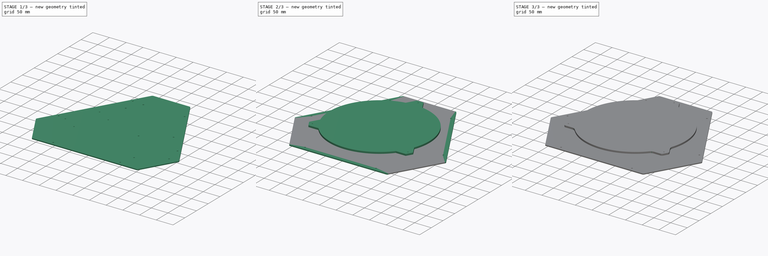
[diagram: build sequence overview — one tinted view per stage of 3, left to right]
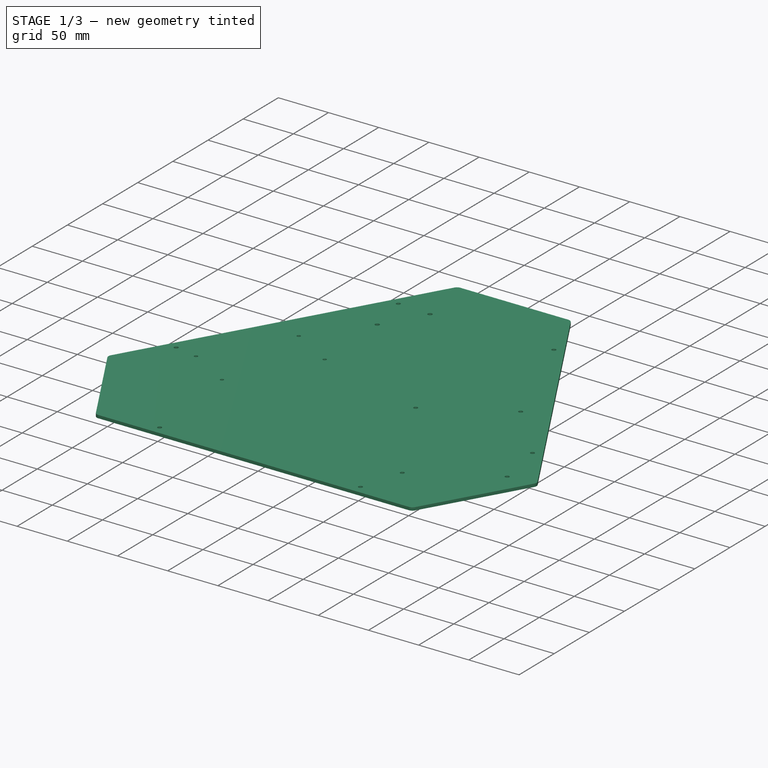
[diagram: stage 1 of 3 — iso view after this stage's code; geometry added in this stage tinted green]
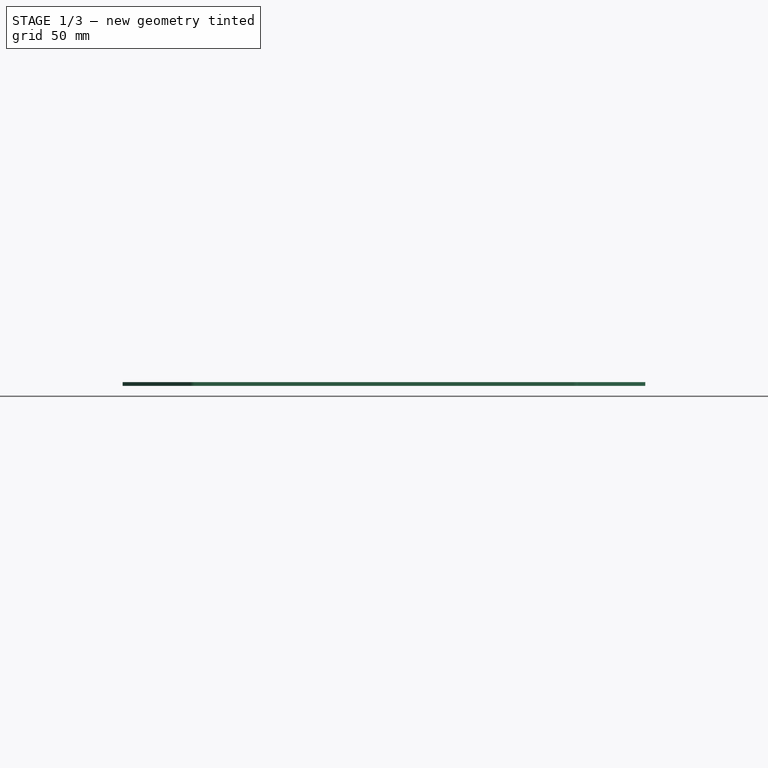
[diagram: stage 1 of 3 — front view after this stage's code; geometry added in this stage tinted green]
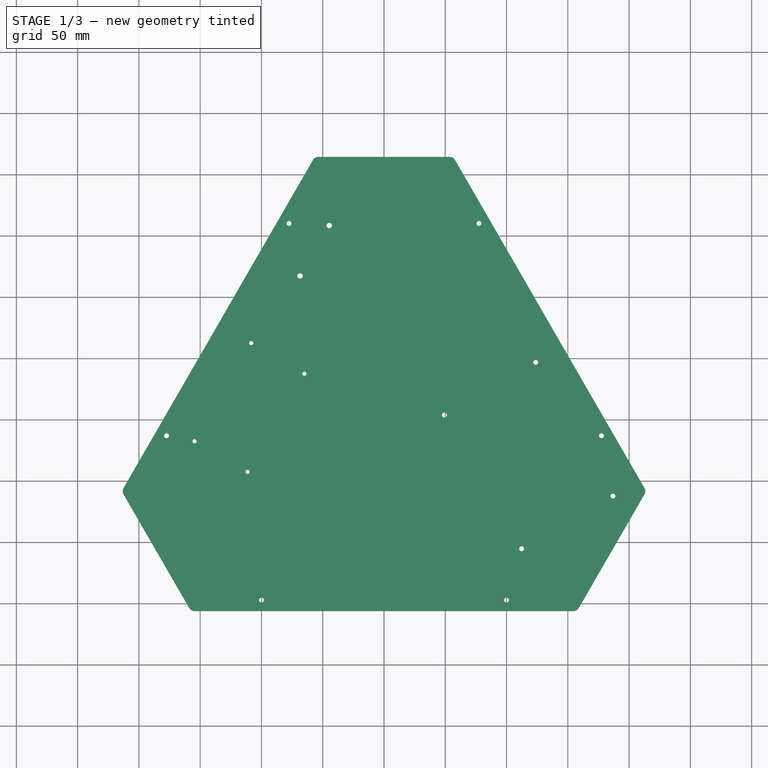
[diagram: stage 1 of 3 — top view after this stage's code; geometry added in this stage tinted green]
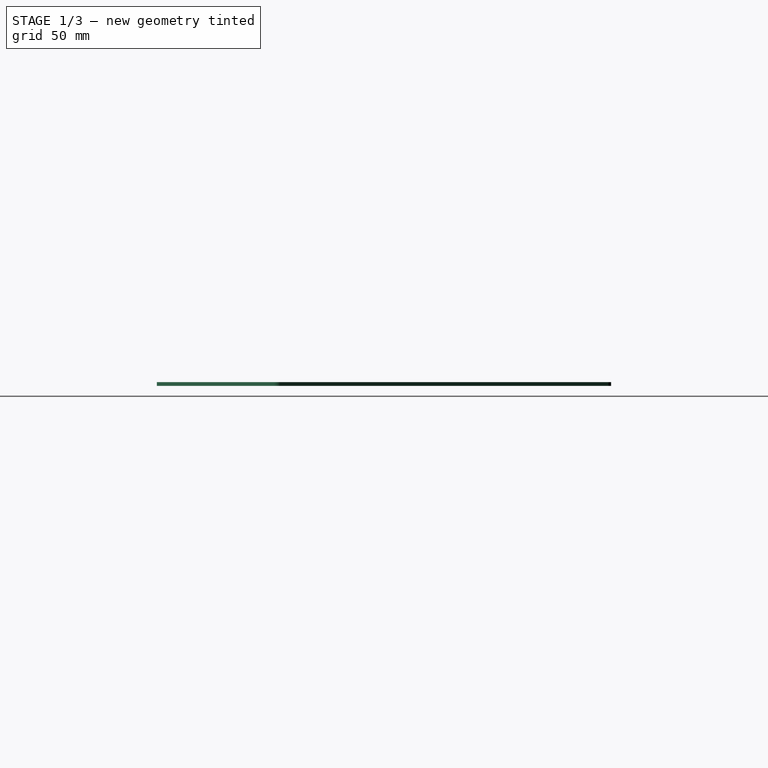
[diagram: stage 1 of 3 — right view after this stage's code; geometry added in this stage tinted green]
FCSTD DOCUMENT  (FreeCAD 0.16R6707 (Git))
Label: Plates
License: Other
LicenseURL: http://ohwr.org/cernohl
objects: Part::Fillet×4, Sketcher::SketchObject×3, PartDesign::Pad×3
note: 13 computed .brp shape members not serialized (recipe doc carries the construction recipe); baked Part::Feature solids carry a one-line shape summary decoded from their .brp

FEATURE [Sketcher::SketchObject] Sketch002
  sketch-geometry (38):
    g0: LineSegment [constr] StartX=-270.72 StartY=-156.3 StartZ=0 EndX=0 EndY=0 EndZ=0
    g1: LineSegment [constr] StartX=0 StartY=0 StartZ=0 EndX=270.72 EndY=-156.3 EndZ=0
    g2: LineSegment StartX=-56.5 StartY=214.486 StartZ=0 EndX=56.5 EndY=214.486 EndZ=0
    g3: LineSegment StartX=-214 StartY=-58.3124 StartZ=0 EndX=-157.5 EndY=-156.173 EndZ=0
    g4: LineSegment StartX=214 StartY=-58.3124 StartZ=0 EndX=157.5 EndY=-156.173 EndZ=0
    g5: LineSegment StartX=-157.5 StartY=-156.173 StartZ=0 EndX=157.5 EndY=-156.173 EndZ=0
    g6: LineSegment StartX=214 StartY=-58.3124 StartZ=0 EndX=56.5 EndY=214.486 EndZ=0
    g7: LineSegment StartX=-214 StartY=-58.3124 StartZ=0 EndX=-56.5 EndY=214.486 EndZ=0
    g8: Circle [constr] CenterX=0 CenterY=0 CenterZ=0 NormalX=0 NormalY=0 NormalZ=1 Radius=312.6
    g9: Circle CenterX=-100 CenterY=-147.173 CenterZ=0 NormalX=0 NormalY=0 NormalZ=1 Radius=2
    g10: Circle CenterX=100 CenterY=-147.173 CenterZ=0 NormalX=0 NormalY=0 NormalZ=1 Radius=2
    g11: LineSegment [constr] StartX=-208.804 StartY=-67.3124 StartZ=0 EndX=-46.1077 EndY=214.486 EndZ=0
    g12: LineSegment [constr] StartX=-135.25 StartY=78.0866 StartZ=0 EndX=-127.456 EndY=73.5866 EndZ=0
    g13: LineSegment [constr] StartX=46.1077 StartY=214.486 StartZ=0 EndX=208.804 EndY=-67.3124 EndZ=0
    g14: LineSegment [constr] StartX=127.456 StartY=73.5866 StartZ=0 EndX=135.25 EndY=78.0866 EndZ=0
    g15: Circle CenterX=-177.456 CenterY=-13.0159 CenterZ=0 NormalX=0 NormalY=0 NormalZ=1 Radius=2
    g16: Circle CenterX=-77.4558 CenterY=160.189 CenterZ=0 NormalX=0 NormalY=0 NormalZ=1 Radius=2
    g17: Circle CenterX=77.4558 CenterY=160.189 CenterZ=0 NormalX=0 NormalY=0 NormalZ=1 Radius=2
    g18: Circle CenterX=177.456 CenterY=-13.0159 CenterZ=0 NormalX=0 NormalY=0 NormalZ=1 Radius=2
    g19: LineSegment [constr] StartX=49.3257 StartY=3.80682 StartZ=0 EndX=123.804 EndY=46.8068 EndZ=0
    g20: LineSegment [constr] StartX=123.804 StartY=46.8068 StartZ=0 EndX=186.804 EndY=-62.3124 EndZ=0
    g21: LineSegment [constr] StartX=186.804 StartY=-62.3124 StartZ=0 EndX=112.326 EndY=-105.312 EndZ=0
    g22: LineSegment [constr] StartX=112.326 StartY=-105.312 StartZ=0 EndX=49.3257 EndY=3.80682 EndZ=0
    g23: Circle CenterX=112.326 CenterY=-105.312 CenterZ=0 NormalX=0 NormalY=0 NormalZ=1 Radius=2
    g24: Circle CenterX=186.804 CenterY=-62.3124 CenterZ=0 NormalX=0 NormalY=0 NormalZ=1 Radius=2
    g25: LineSegment [constr] StartX=-108.304 StartY=62.545 StartZ=0 EndX=-154.554 EndY=-17.5624 EndZ=0
    g26: LineSegment [constr] StartX=-154.554 StartY=-17.5624 StartZ=0 EndX=-111.253 EndY=-42.5624 EndZ=0
    g27: LineSegment [constr] StartX=-111.253 StartY=-42.5624 StartZ=0 EndX=-65.0026 EndY=37.545 EndZ=0
    g28: LineSegment [constr] StartX=-65.0026 StartY=37.545 StartZ=0 EndX=-108.304 EndY=62.545 EndZ=0
    g29: Circle CenterX=-108.304 CenterY=62.545 CenterZ=0 NormalX=0 NormalY=0 NormalZ=1 Radius=1.7
    g30: LineSegment [constr] StartX=-68.4577 StartY=117.349 StartZ=0 EndX=-44.7077 EndY=158.486 EndZ=0
    g31: Circle CenterX=-68.4577 CenterY=117.349 CenterZ=0 NormalX=0 NormalY=0 NormalZ=1 Radius=2.2
    g32: Circle CenterX=-44.7077 CenterY=158.486 CenterZ=0 NormalX=0 NormalY=0 NormalZ=1 Radius=2.2
    g33: Circle CenterX=49.3257 CenterY=3.80682 CenterZ=0 NormalX=0 NormalY=0 NormalZ=1 Radius=2
    g34: Circle CenterX=123.804 CenterY=46.8068 CenterZ=0 NormalX=0 NormalY=0 NormalZ=1 Radius=2
    g35: Circle CenterX=-154.554 CenterY=-17.5624 CenterZ=0 NormalX=0 NormalY=0 NormalZ=1 Radius=1.7
    g36: Circle CenterX=-111.253 CenterY=-42.5624 CenterZ=0 NormalX=0 NormalY=0 NormalZ=1 Radius=1.7
    g37: Circle CenterX=-65.0026 CenterY=37.545 CenterZ=0 NormalX=0 NormalY=0 NormalZ=1 Radius=1.7
  constraints (103):
    c: Coincident(g0,g-1)
    c: Coincident(g1,g-1)
    c: Angle(g0,g-1) = 2.61799
    c: Coincident(g5,g4)
    c: Horizontal(g5)
    c: Coincident(g6,g4)
    c: Coincident(g6,g2)
    c: Coincident(g7,g3)
    c: Coincident(g7,g2)
    c: Symmetric(g2,g2,g-2)
    c: Symmetric(g4,g4,g1)
    c: Coincident(g5,g3)
    c: Symmetric(g3,g3,g0)
    c: Angle(g3,g7) = 2.0944
    c: Equal(g7,g5)
    c: Equal(g5,g6)
    c: Equal(g4,g3)
    c: Equal(g3,g2)
    c: DistanceX(g2,g2) = 113
    c: DistanceX(g3,g4) = 315
    c: Coincident(g8,g-1)
    c: Radius(g8) = 312.6
    c: PointOnObject(g1,g8)
    c: PointOnObject(g0,g8)
    c: Symmetric(g10,g9,g-2)
    c: DistanceY(g3,g9) = 9
    c: DistanceX(g9,g10) = 200
    c: PointOnObject(g11,g3)
    c: PointOnObject(g11,g2)
    c: Parallel(g11,g7)
    c: PointOnObject(g12,g7)
    c: PointOnObject(g12,g11)
    c: Symmetric(g11,g11,g12)
    c: Distance(g12) = 9
    c: PointOnObject(g13,g2)
    c: PointOnObject(g13,g4)
    c: Parallel(g13,g6)
    c: PointOnObject(g14,g13)
    c: PointOnObject(g14,g6)
    c: Symmetric(g13,g13,g14)
    c: Distance(g14) = 9
    c: PointOnObject(g15,g11)
    c: PointOnObject(g16,g11)
    c: PointOnObject(g17,g13)
    c: PointOnObject(g18,g13)
    c: Symmetric(g18,g17,g14)
    c: Symmetric(g15,g16,g12)
    c: Distance(g15,g16) = 200
    c: Distance(g17,g18) = 200
    c: Radius(g16) = 2
    c: Equal(g16,g17)
    c: Equal(g16,g15)
    c: Equal(g16,g9)
    c: Equal(g16,g10)
    c: Equal(g16,g18)
    c: Coincident(g19,g20)
    c: Coincident(g20,g21)
    c: Coincident(g21,g22)
    c: Coincident(g22,g19)
    c: Parallel(g22,g20)
    c: Parallel(g20,g13)
    c: Angle(g20,g21) = 1.5708
    c: Angle(g22,g19) = 1.5708
    c: Distance(g21) = 86
    c: DistanceX(g20,g13) = 22
    c: DistanceY(g13,g20) = 5
    c: Distance(g22) = 126
    c: Coincident(g23,g21)
    c: Coincident(g24,g20)
    c: Equal(g24,g18)
    c: Coincident(g25,g26)
    c: Coincident(g26,g27)
    c: Coincident(g27,g28)
    c: Coincident(g28,g25)
    c: Parallel(g25,g11)
    c: Parallel(g11,g27)
    c: Angle(g26,g25) = 1.5708
    c: Angle(g28,g27) = 1.5708
    c: DistanceX(g11,g25) = 54.25
    c: DistanceY(g11,g25) = 49.75
    c: Distance(g26) = 50
    c: Distance(g27) = 92.5
    c: Coincident(g29,g25)
    c: Radius(g29) = 1.7
    c: Parallel(g30,g11)
    c: Distance(g30) = 47.5
    c: DistanceY(g30,g11) = 56
    c: DistanceX(g11,g30) = 1.4
    c: Coincident(g31,g30)
    c: Coincident(g32,g30)
    c: Radius(g32) = 2.2
    c: Equal(g32,g31)
    c: Coincident(g33,g19)
    c: Coincident(g34,g19)
    c: Equal(g34,g33)
    c: Equal(g33,g23)
    c: Equal(g23,g24)
    c: Coincident(g35,g25)
    c: Coincident(g36,g26)
    c: Coincident(g37,g27)
    c: Equal(g37,g36)
    c: Equal(g36,g35)
    c: Equal(g35,g29)
FEATURE [PartDesign::Pad] Pad002
  Length = 3
  Length2 = 100
  Sketch = -> Sketch002
  Type = 0
FEATURE [Part::Fillet] Fillet003  label="Electronics Plate"
  Base = -> Pad002
  Edges = 6 edges r=5: [Edge1,Edge2,Edge5,Edge8,Edge11,Edge14]
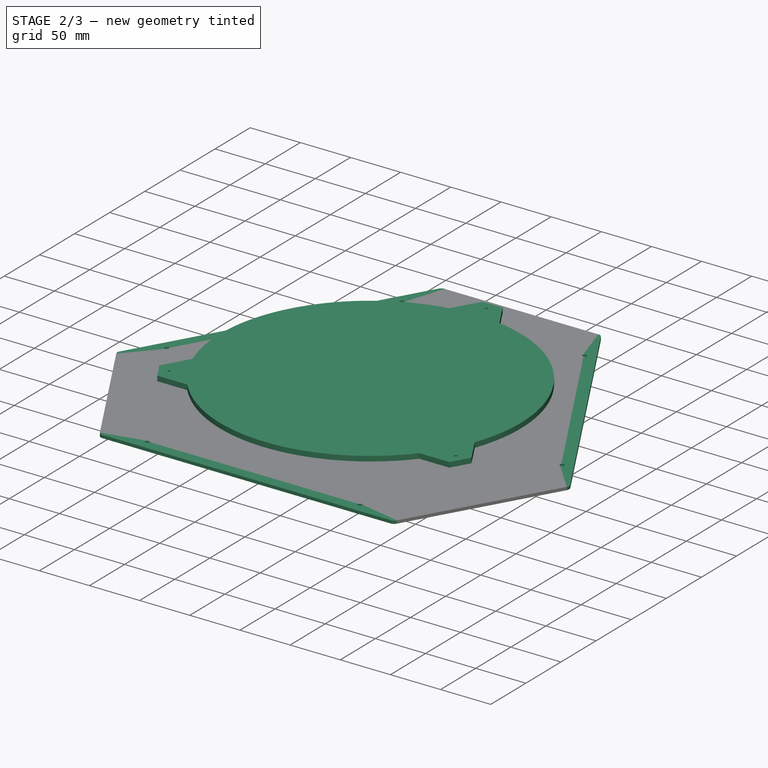
[diagram: stage 2 of 3 — iso view after this stage's code; geometry added in this stage tinted green]
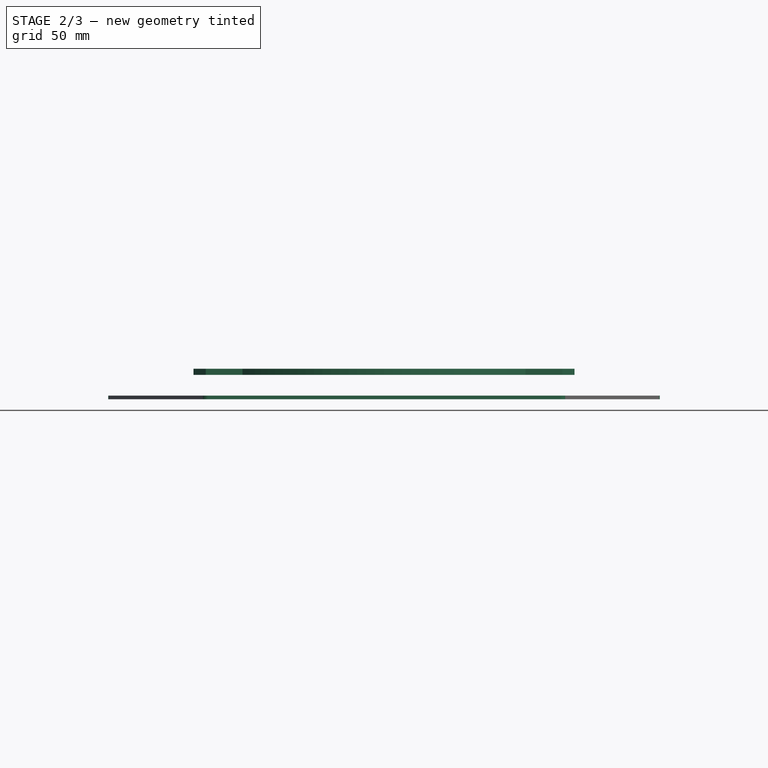
[diagram: stage 2 of 3 — front view after this stage's code; geometry added in this stage tinted green]
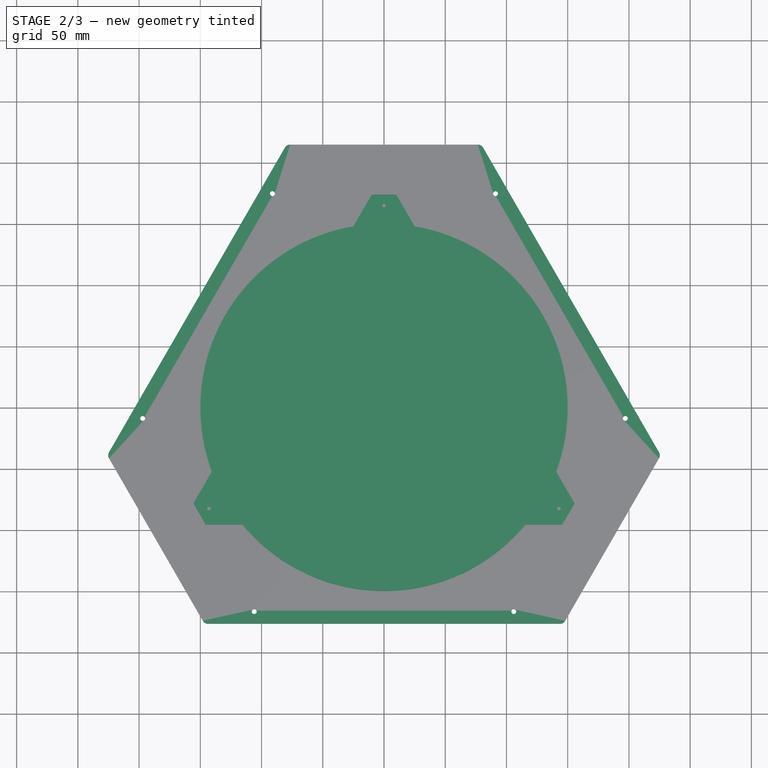
[diagram: stage 2 of 3 — top view after this stage's code; geometry added in this stage tinted green]
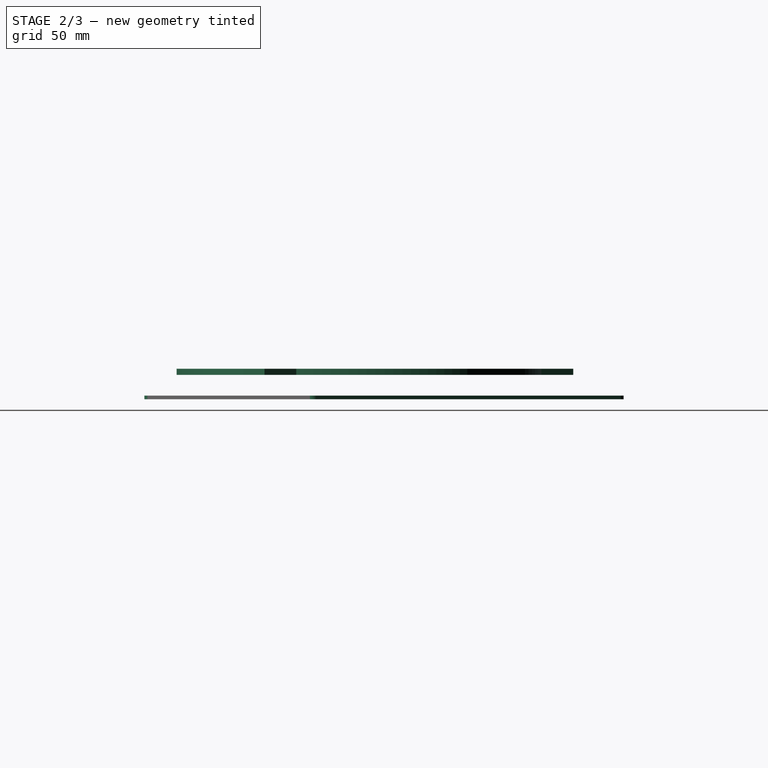
[diagram: stage 2 of 3 — right view after this stage's code; geometry added in this stage tinted green]
FEATURE [Sketcher::SketchObject] Sketch
  Placement = pos=(0,0,20) rot=(0,0,1;0rad)
  sketch-geometry (21):
    g0: LineSegment [constr] StartX=142.894 StartY=-82.5 StartZ=0 EndX=0 EndY=165 EndZ=0
    g1: LineSegment [constr] StartX=0 StartY=165 StartZ=0 EndX=-142.894 EndY=-82.5 EndZ=0
    g2: LineSegment [constr] StartX=-142.894 StartY=-82.5 StartZ=0 EndX=142.894 EndY=-82.5 EndZ=0
    g3: Circle [constr] CenterX=0 CenterY=0 CenterZ=0 NormalX=0 NormalY=0 NormalZ=1 Radius=165
    g4: ArcOfCircle CenterX=0 CenterY=0 CenterZ=0 NormalX=0 NormalY=0 NormalZ=1 Radius=150 StartAngle=1.73824 EndAngle=3.49774
    g5: ArcOfCircle CenterX=0 CenterY=0 CenterZ=0 NormalX=0 NormalY=0 NormalZ=1 Radius=150 StartAngle=3.83264 EndAngle=5.59214
    g6: ArcOfCircle CenterX=0 CenterY=0 CenterZ=0 NormalX=0 NormalY=0 NormalZ=1 Radius=150 StartAngle=5.92703 EndAngle=7.68653
    g7: LineSegment [constr] StartX=-142.894 StartY=-82.5 StartZ=0 EndX=0 EndY=0 EndZ=0
    g8: LineSegment [constr] StartX=0 StartY=0 StartZ=0 EndX=142.894 EndY=-82.5 EndZ=0
    g9: LineSegment StartX=-140.587 StartY=-52.3004 StartZ=0 EndX=-155.587 EndY=-78.2811 EndZ=0
    g10: LineSegment StartX=-155.587 StartY=-78.2811 StartZ=0 EndX=-145.587 EndY=-95.6016 EndZ=0
    g11: LineSegment StartX=-145.587 StartY=-95.6016 StartZ=0 EndX=-115.587 EndY=-95.6016 EndZ=0
    g12: LineSegment StartX=115.587 StartY=-95.6016 StartZ=0 EndX=145.587 EndY=-95.6016 EndZ=0
    g13: LineSegment StartX=145.587 StartY=-95.6016 StartZ=0 EndX=155.587 EndY=-78.2811 EndZ=0
    g14: LineSegment StartX=155.587 StartY=-78.2811 StartZ=0 EndX=140.587 EndY=-52.3004 EndZ=0
    g15: LineSegment StartX=-25 StartY=147.902 StartZ=0 EndX=-10 EndY=173.883 EndZ=0
    g16: LineSegment StartX=-10 StartY=173.883 StartZ=0 EndX=10 EndY=173.883 EndZ=0
    g17: LineSegment StartX=10 StartY=173.883 StartZ=0 EndX=25 EndY=147.902 EndZ=0
    g18: Circle CenterX=-142.894 CenterY=-82.5 CenterZ=0 NormalX=0 NormalY=0 NormalZ=1 Radius=1.5
    g19: Circle CenterX=142.894 CenterY=-82.5 CenterZ=0 NormalX=0 NormalY=0 NormalZ=1 Radius=1.5
    g20: Circle CenterX=0 CenterY=165 CenterZ=0 NormalX=0 NormalY=0 NormalZ=1 Radius=1.5
  constraints (56):
    c: Coincident(g0,g1)
    c: Coincident(g1,g2)
    c: Coincident(g2,g0)
    c: Equal(g0,g1)
    c: Equal(g0,g2)
    c: PointOnObject(g0,g3)
    c: PointOnObject(g1,g3)
    c: PointOnObject(g2,g3)
    c: Coincident(g3,g-1)
    c: Radius(g3) = 165
    c: PointOnObject(g0,g-2)
    c: Coincident(g4,g-1)
    c: Coincident(g5,g-1)
    c: Coincident(g6,g-1)
    c: Radius(g5) = 150
    c: Coincident(g7,g1)
    c: Coincident(g7,g-1)
    c: Coincident(g8,g-1)
    c: Coincident(g8,g0)
    c: Symmetric(g5,g6,g8)
    c: Symmetric(g4,g6,g-2)
    c: Symmetric(g4,g5,g7)
    c: Coincident(g9,g4)
    c: Coincident(g10,g9)
    c: Coincident(g11,g10)
    c: Coincident(g11,g5)
    c: Horizontal(g11)
    c: Symmetric(g9,g10,g7)
    c: Distance(g5,g4) = 50
    c: Distance(g10,g9) = 20
    c: Coincident(g12,g5)
    c: Coincident(g13,g12)
    c: Coincident(g14,g13)
    c: Coincident(g14,g6)
    c: Coincident(g15,g4)
    c: Horizontal(g16)
    c: Coincident(g17,g6)
    c: Symmetric(g15,g16,g-2)
    c: Symmetric(g12,g13,g8)
    c: Equal(g10,g13)
    c: Equal(g13,g16)
    c: Distance(g5,g6) = 50
    c: DistanceX(g4,g6) = 50
    c: Equal(g11,g12)
    c: Equal(g12,g14)
    c: Equal(g14,g17)
    c: Equal(g17,g15)
    c: Equal(g9,g11)
    c: Coincident(g16,g17)
    c: Coincident(g16,g15)
    c: Coincident(g18,g1)
    c: Coincident(g19,g0)
    c: Coincident(g20,g0)
    c: Radius(g20) = 1.5
    c: Equal(g20,g19)
    c: Equal(g20,g18)
FEATURE [PartDesign::Pad] Pad
  Length = 5
  Length2 = 100
  Placement = pos=(0,0,20) rot=(0,0,1;0rad)
  Sketch = -> Sketch
  Type = 0
FEATURE [Sketcher::SketchObject] Sketch001
  sketch-geometry (29):
    g0: Circle [constr] CenterX=0 CenterY=0 CenterZ=0 NormalX=0 NormalY=0 NormalZ=1 Radius=354
    g1: LineSegment [constr] StartX=0 StartY=0 StartZ=0 EndX=-306.573 EndY=-177 EndZ=0
    g2: LineSegment [constr] StartX=0 StartY=0 StartZ=0 EndX=306.573 EndY=-177 EndZ=0
    g3: LineSegment StartX=146.5 StartY=-176.381 StartZ=0 EndX=226 EndY=-38.6825 EndZ=0
    g4: LineSegment StartX=-226 StartY=-38.6825 StartZ=0 EndX=-146.5 EndY=-176.381 EndZ=0
    g5: LineSegment StartX=-79.5 StartY=215.063 StartZ=0 EndX=79.5 EndY=215.063 EndZ=0
    g6: LineSegment StartX=-146.5 StartY=-176.381 StartZ=0 EndX=146.5 EndY=-176.381 EndZ=0
    g7: LineSegment StartX=-226 StartY=-38.6825 StartZ=0 EndX=-79.5 EndY=215.063 EndZ=0
    g8: LineSegment StartX=79.5 StartY=215.063 StartZ=0 EndX=226 EndY=-38.6825 EndZ=0
    g9: Circle CenterX=0 CenterY=0 CenterZ=0 NormalX=0 NormalY=0 NormalZ=1 Radius=10
    g10: LineSegment [constr] StartX=0 StartY=165 StartZ=0 EndX=-142.894 EndY=-82.5 EndZ=0
    g11: LineSegment [constr] StartX=-142.894 StartY=-82.5 StartZ=0 EndX=142.894 EndY=-82.5 EndZ=0
    g12: LineSegment [constr] StartX=142.894 StartY=-82.5 StartZ=0 EndX=0 EndY=165 EndZ=0
    g13: Circle [constr] CenterX=0 CenterY=0 CenterZ=0 NormalX=0 NormalY=0 NormalZ=1 Radius=165
    g14: Circle CenterX=-142.894 CenterY=-82.5 CenterZ=0 NormalX=0 NormalY=0 NormalZ=1 Radius=1.5
    g15: Circle CenterX=142.894 CenterY=-82.5 CenterZ=0 NormalX=0 NormalY=0 NormalZ=1 Radius=1.5
    g16: Circle CenterX=0 CenterY=165 CenterZ=0 NormalX=0 NormalY=0 NormalZ=1 Radius=1.5
    g17: LineSegment [constr] StartX=-220.226 StartY=-48.6825 StartZ=0 EndX=-67.953 EndY=215.063 EndZ=0
    g18: LineSegment [constr] StartX=-152.75 StartY=88.1903 StartZ=0 EndX=-144.09 EndY=83.1903 EndZ=0
    g19: LineSegment [constr] StartX=67.953 StartY=215.063 StartZ=0 EndX=220.226 EndY=-48.6825 EndZ=0
    g20: LineSegment [constr] StartX=-152.274 StartY=-166.381 StartZ=0 EndX=152.274 EndY=-166.381 EndZ=0
    g21: LineSegment [constr] StartX=0 StartY=-176.381 StartZ=0 EndX=0 EndY=-166.381 EndZ=0
    g22: LineSegment [constr] StartX=144.09 StartY=83.1903 StartZ=0 EndX=152.75 EndY=88.1903 EndZ=0
    g23: Circle CenterX=-197.09 CenterY=-8.60844 CenterZ=0 NormalX=0 NormalY=0 NormalZ=1 Radius=2
    g24: Circle CenterX=-91.0897 CenterY=174.989 CenterZ=0 NormalX=0 NormalY=0 NormalZ=1 Radius=2
    g25: Circle CenterX=91.0897 CenterY=174.989 CenterZ=0 NormalX=0 NormalY=0 NormalZ=1 Radius=2
    g26: Circle CenterX=197.09 CenterY=-8.60844 CenterZ=0 NormalX=0 NormalY=0 NormalZ=1 Radius=2
    g27: Circle CenterX=-106 CenterY=-166.381 CenterZ=0 NormalX=0 NormalY=0 NormalZ=1 Radius=2
    g28: Circle CenterX=106 CenterY=-166.381 CenterZ=0 NormalX=0 NormalY=0 NormalZ=1 Radius=2
  constraints (80):
    c: PointOnObject(g1,g0)
    c: Coincident(g0,g-1)
    c: Radius(g0) = 354
    c: Coincident(g1,g-1)
    c: Coincident(g2,g-1)
    c: Angle(g2,g-1) = 0.523599
    c: Angle(g1,g-1) = 2.61799
    c: Symmetric(g5,g5,g-2)
    c: Symmetric(g4,g4,g1)
    c: Symmetric(g3,g3,g2)
    c: Equal(g4,g5)
    c: Equal(g5,g3)
    c: Coincident(g6,g4)
    c: Coincident(g6,g3)
    c: Horizontal(g6)
    c: Coincident(g7,g4)
    c: Coincident(g7,g5)
    c: Coincident(g8,g5)
    c: Coincident(g8,g3)
    c: Equal(g6,g7)
    c: Equal(g7,g8)
    c: DistanceX(g6,g6) = 293
    c: DistanceX(g5,g5) = 159
    c: PointOnObject(g2,g0)
    c: Coincident(g9,g-1)
    c: Radius(g9) = 10
    c: Coincident(g10,g11)
    c: Coincident(g11,g12)
    c: Coincident(g12,g10)
    c: Equal(g10,g11)
    c: Equal(g10,g12)
    c: PointOnObject(g10,g13)
    c: PointOnObject(g11,g13)
    c: PointOnObject(g12,g13)
    c: Coincident(g13,g-1)
    c: PointOnObject(g10,g-2)
    c: Radius(g13) = 165
    c: Coincident(g14,g10)
    c: Coincident(g15,g11)
    c: Coincident(g16,g10)
    c: Radius(g16) = 1.5
    c: Equal(g16,g14)
    c: Equal(g16,g15)
    c: PointOnObject(g17,g4)
    c: PointOnObject(g17,g5)
    c: Parallel(g7,g17)
    c: PointOnObject(g18,g7)
    c: PointOnObject(g18,g17)
    c: Symmetric(g17,g17,g18)
    c: Distance(g18) = 10
    c: PointOnObject(g19,g5)
    c: PointOnObject(g19,g3)
    c: PointOnObject(g20,g4)
    c: PointOnObject(g20,g3)
    c: Horizontal(g20)
    c: PointOnObject(g21,g-2)
    c: PointOnObject(g21,g20)
    c: Vertical(g21)
    c: PointOnObject(g21,g6)
    c: DistanceY(g21,g21) = 10
    c: Parallel(g19,g8)
    c: PointOnObject(g22,g19)
    c: PointOnObject(g22,g8)
    c: Symmetric(g19,g19,g22)
    c: Distance(g22) = 10
    c: PointOnObject(g23,g17)
    c: PointOnObject(g24,g17)
    c: PointOnObject(g25,g19)
    c: PointOnObject(g26,g19)
    c: PointOnObject(g27,g20)
    c: PointOnObject(g28,g20)
    c: Radius(g28) = 2
    c: Equal(g28,g27)
    c: Equal(g28, g23-g26) x4
    c: Symmetric(g23,g24,g18)
    c: Symmetric(g25,g26,g22)
    c: Symmetric(g27,g28,g-2)
    c: DistanceX(g27,g28) = 212
    c: Distance(g23,g24) = 212
    c: Distance(g26,g25) = 212
FEATURE [PartDesign::Pad] Pad001
  Length = 3
  Length2 = 100
  Sketch = -> Sketch001
  Type = 0
FEATURE [Part::Fillet] Fillet002  label="Cover Plate"
  Base = -> Pad001
  Edges = 6 edges r=5: [Edge1,Edge2,Edge5,Edge8,Edge11,Edge14]
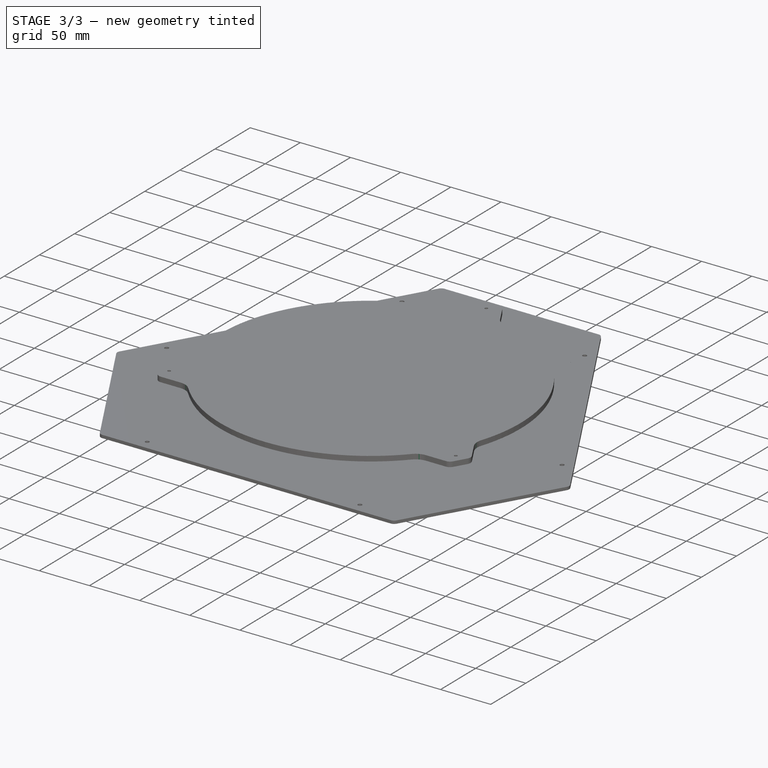
[diagram: stage 3 of 3 — iso view after this stage's code; geometry added in this stage tinted green]
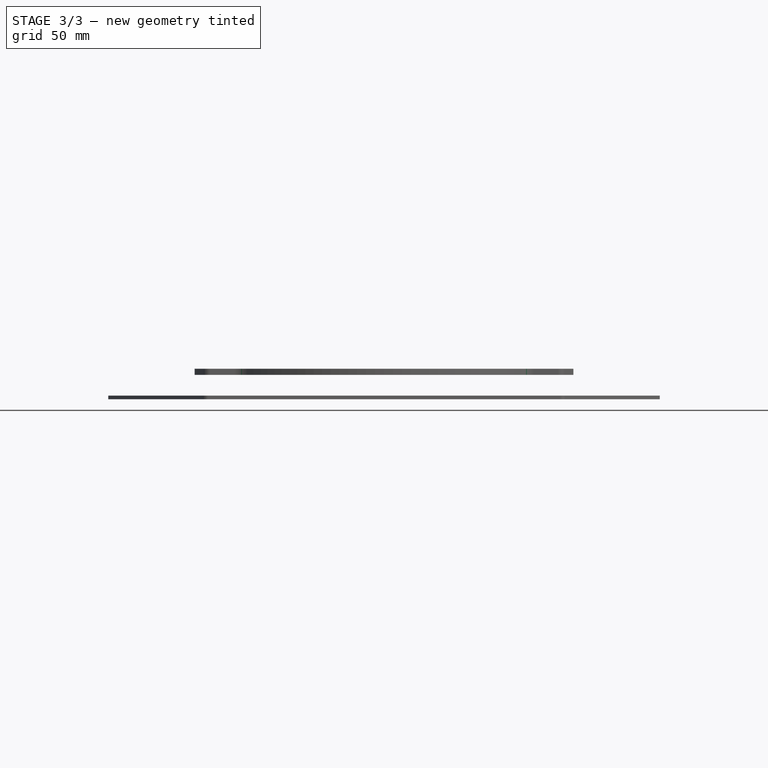
[diagram: stage 3 of 3 — front view after this stage's code; geometry added in this stage tinted green]
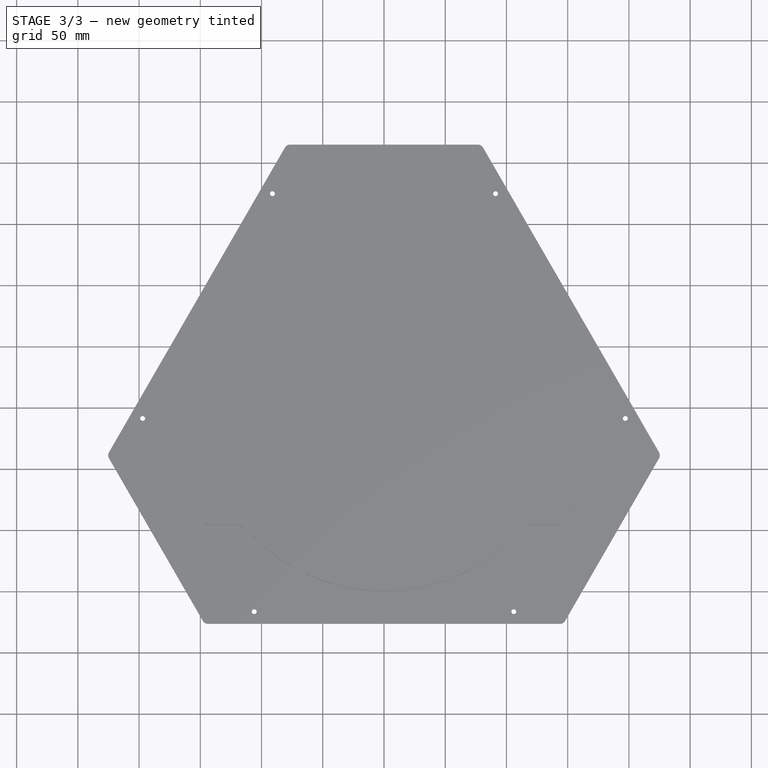
[diagram: stage 3 of 3 — top view after this stage's code; geometry added in this stage tinted green]
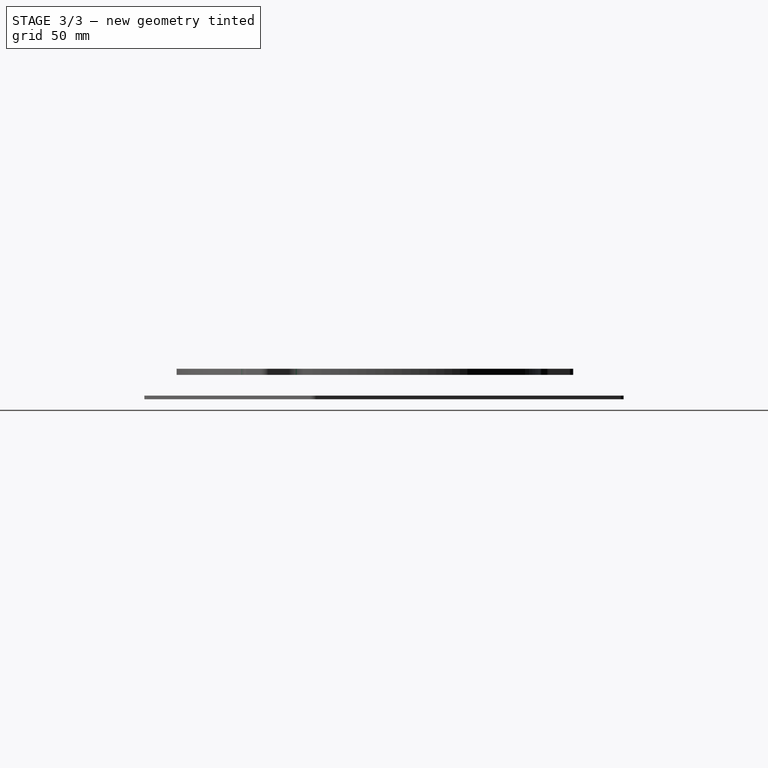
[diagram: stage 3 of 3 — right view after this stage's code; geometry added in this stage tinted green]
FEATURE [Part::Fillet] Fillet
  Base = -> Pad
  Edges = 6 edges r=15: [Edge1,Edge2,Edge11,Edge14,Edge23,Edge26]
FEATURE [Part::Fillet] Fillet001  label="Build Plate"
  Base = -> Fillet
  Edges = 6 edges r=6: [Edge47,Edge48,Edge49,Edge50,Edge59,Edge60]
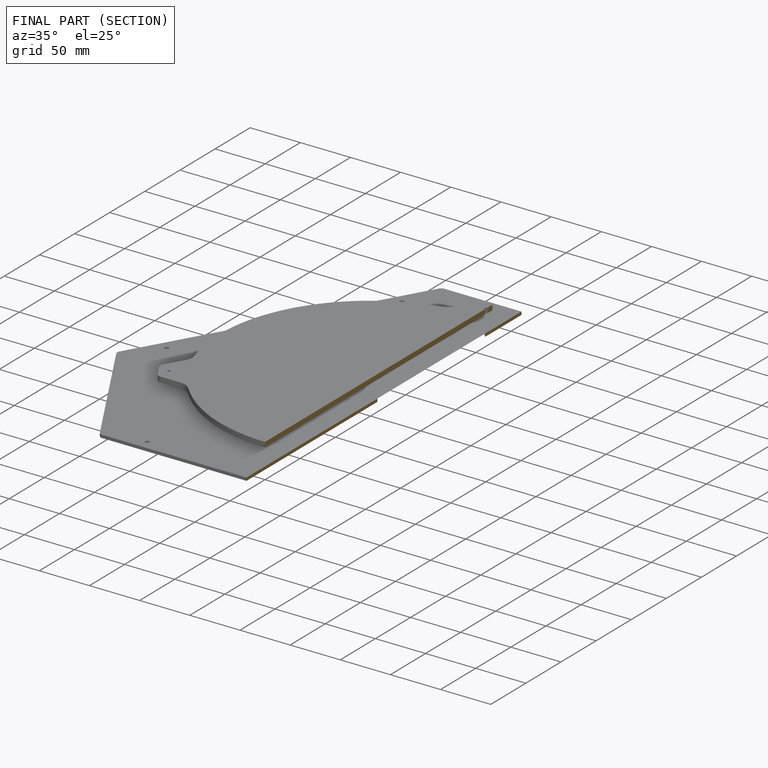
[diagram: finished part — half-section view (interior)]
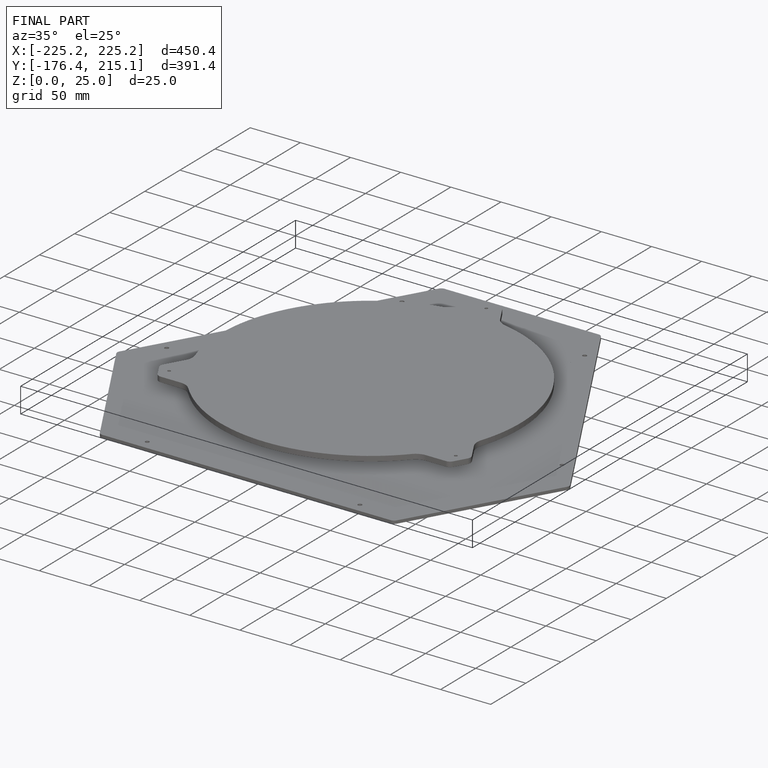
[diagram: finished part — iso view with bounding-box wireframe]
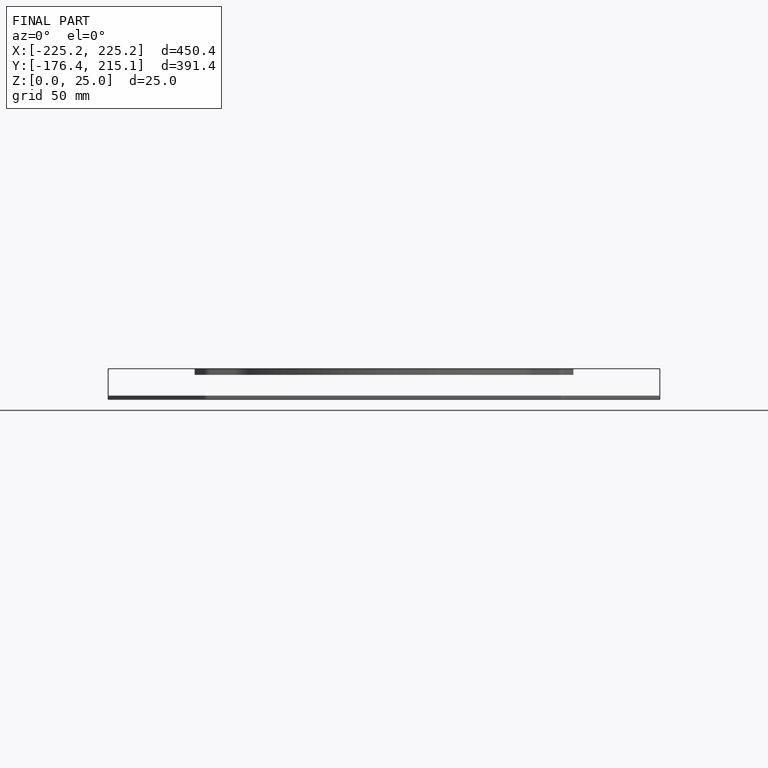
[diagram: finished part — front view with bounding-box wireframe]
